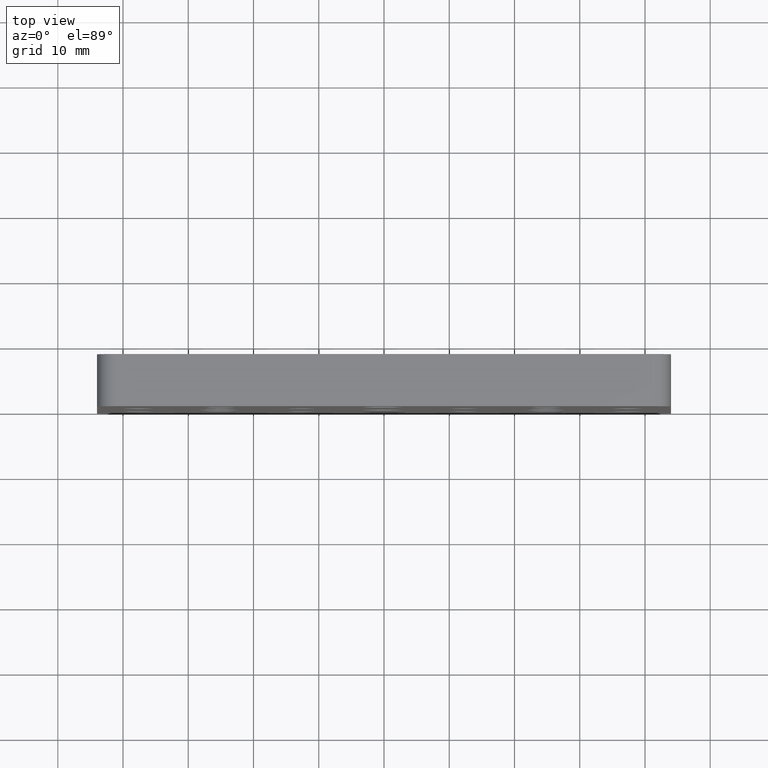
[diagram: clean part render]
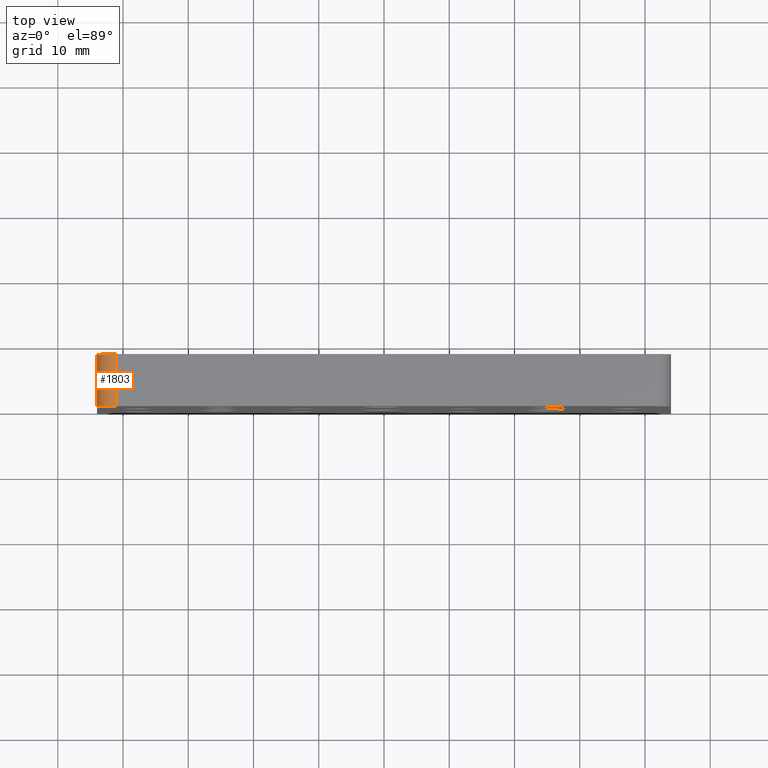
[diagram: same view with one face highlighted and labeled with its STEP entity id]
A machine part, top view. The second image highlights one B-rep face of the part: STEP entity #1803.
In plain terms, the highlighted cylindrical surface (edge-blend (fillet) strip) has radius 3 mm, axis along (0, -1, 0).
Its self-contained STEP definition (entity closure, byte-faithful):
#9 = LINE ( 'NONE', #1074, #1667 ) ;
#52 = DIRECTION ( 'NONE',  ( -0.0000000000000000000, 1.000000000000000000, -0.0000000000000000000 ) ) ;
#56 = ORIENTED_EDGE ( 'NONE', *, *, #946, .F. ) ;
#79 = ORIENTED_EDGE ( 'NONE', *, *, #1155, .F. ) ;
#153 = DIRECTION ( 'NONE',  ( -0.0000000000000000000, -1.000000000000000000, -0.0000000000000000000 ) ) ;
#243 = AXIS2_PLACEMENT_3D ( 'NONE', #329, #321, #1316 ) ;
#260 = CARTESIAN_POINT ( 'NONE',  ( -40.99999999999999300, 8.000000000000000000, 34.50000000000000000 ) ) ;
#321 = DIRECTION ( 'NONE',  ( 0.0000000000000000000, -1.000000000000000000, 0.0000000000000000000 ) ) ;
#329 = CARTESIAN_POINT ( 'NONE',  ( -40.99999999999999300, 8.000000000000000000, 31.50000000000000000 ) ) ;
#428 = VERTEX_POINT ( 'NONE', #1802 ) ;
#464 = DIRECTION ( 'NONE',  ( 0.0000000000000000000, -1.000000000000000000, 0.0000000000000000000 ) ) ;
#473 = VECTOR ( 'NONE', #464, 1000.000000000000000 ) ;
#475 = EDGE_CURVE ( 'NONE', #904, #428, #2109, .T. ) ;
#573 = DIRECTION ( 'NONE',  ( 0.0000000000000000000, 0.0000000000000000000, 1.000000000000000000 ) ) ;
#763 = CARTESIAN_POINT ( 'NONE',  ( -40.99999999999999300, 0.0000000000000000000, 31.50000000000000000 ) ) ;
#798 = CARTESIAN_POINT ( 'NONE',  ( -44.00000000000000000, 0.0000000000000000000, 31.50000000000000000 ) ) ;
#904 = VERTEX_POINT ( 'NONE', #945 ) ;
#914 = EDGE_LOOP ( 'NONE', ( #1300, #79, #56, #1225 ) ) ;
#945 = CARTESIAN_POINT ( 'NONE',  ( -44.00000000000000000, 8.000000000000000000, 31.50000000000000000 ) ) ;
#946 = EDGE_CURVE ( 'NONE', #2224, #2379, #2209, .T. ) ;
#1042 = FACE_OUTER_BOUND ( 'NONE', #914, .T. ) ;
#1074 = CARTESIAN_POINT ( 'NONE',  ( -44.00000000000000000, 8.000000000000000000, 31.50000000000000000 ) ) ;
#1155 = EDGE_CURVE ( 'NONE', #2379, #904, #9, .T. ) ;
#1192 = EDGE_CURVE ( 'NONE', #428, #2224, #2110, .T. ) ;
#1225 = ORIENTED_EDGE ( 'NONE', *, *, #1192, .F. ) ;
#1239 = DIRECTION ( 'NONE',  ( 0.0000000000000000000, 0.0000000000000000000, 1.000000000000000000 ) ) ;
#1300 = ORIENTED_EDGE ( 'NONE', *, *, #475, .F. ) ;
#1316 = DIRECTION ( 'NONE',  ( 0.0000000000000000000, 0.0000000000000000000, -1.000000000000000000 ) ) ;
#1521 = CARTESIAN_POINT ( 'NONE',  ( -40.99999999999999300, 0.0000000000000000000, 34.50000000000000000 ) ) ;
#1530 = CYLINDRICAL_SURFACE ( 'NONE', #243, 2.999999999999999100 ) ;
#1667 = VECTOR ( 'NONE', #52, 1000.000000000000000 ) ;
#1802 = CARTESIAN_POINT ( 'NONE',  ( -40.99999999999999300, 8.000000000000000000, 34.50000000000000000 ) ) ;
#1803 = ADVANCED_FACE ( 'NONE', ( #1042 ), #1530, .T. ) ;
#2057 = CARTESIAN_POINT ( 'NONE',  ( -40.99999999999999300, 8.000000000000000000, 31.50000000000000000 ) ) ;
#2109 = CIRCLE ( 'NONE', #2575, 3.000000000000002700 ) ;
#2110 = LINE ( 'NONE', #260, #473 ) ;
#2209 = CIRCLE ( 'NONE', #2262, 3.000000000000002700 ) ;
#2224 = VERTEX_POINT ( 'NONE', #1521 ) ;
#2262 = AXIS2_PLACEMENT_3D ( 'NONE', #763, #153, #573 ) ;
#2379 = VERTEX_POINT ( 'NONE', #798 ) ;
#2475 = DIRECTION ( 'NONE',  ( 0.0000000000000000000, 1.000000000000000000, 0.0000000000000000000 ) ) ;
#2575 = AXIS2_PLACEMENT_3D ( 'NONE', #2057, #2475, #1239 ) ;